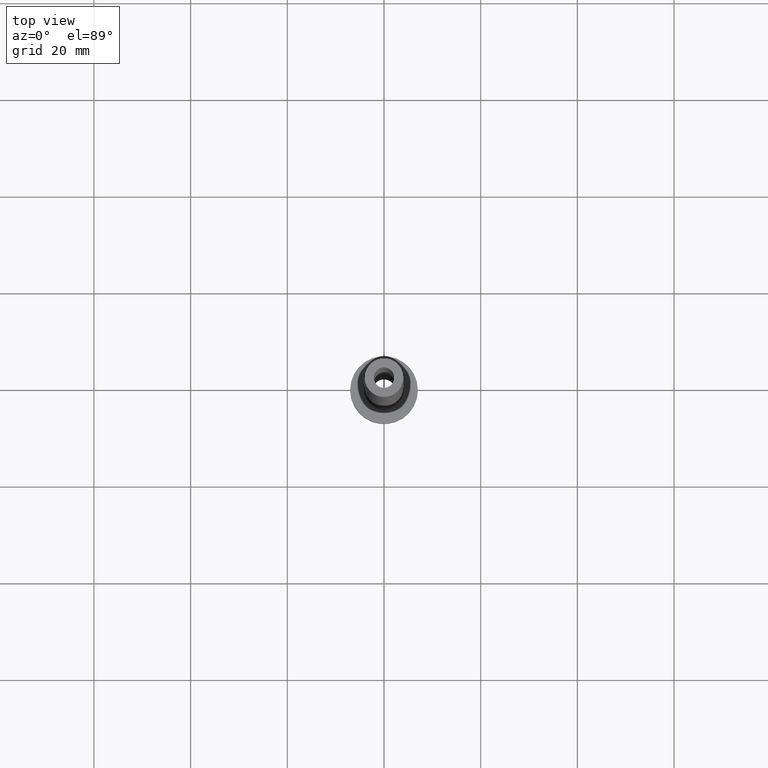
[diagram: clean part render]
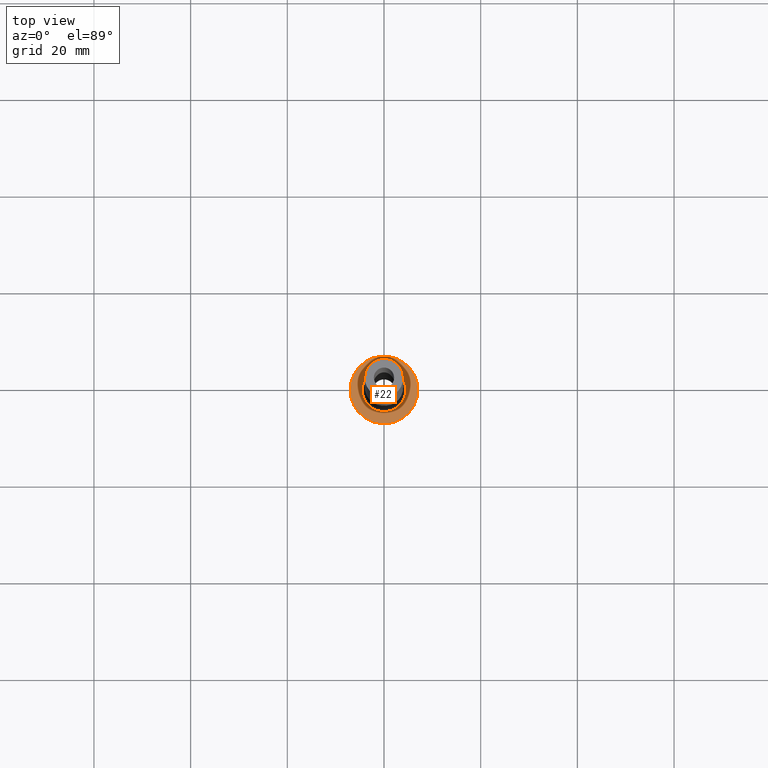
[diagram: same view with one face highlighted and labeled with its STEP entity id]
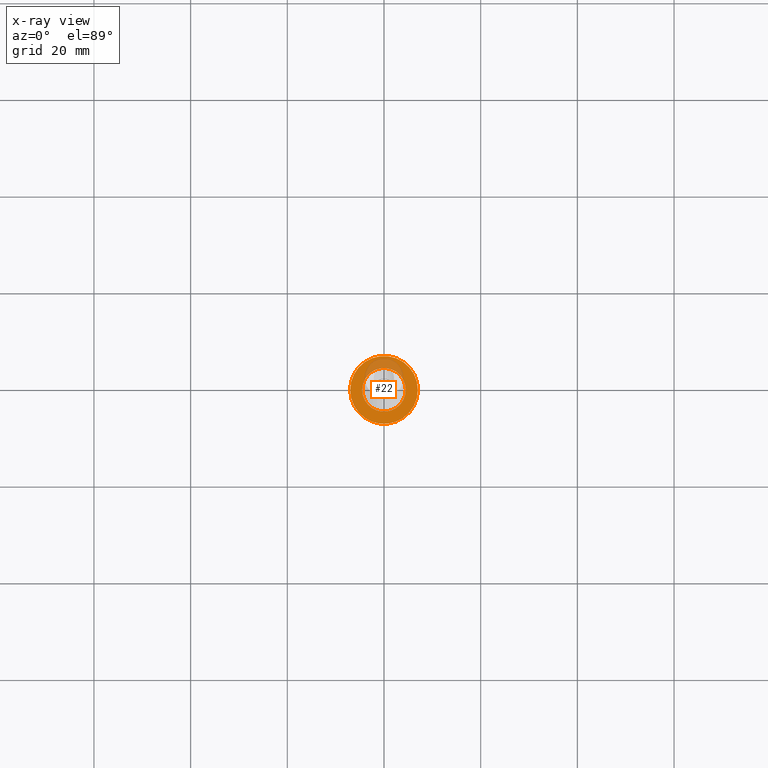
[diagram: x-ray of the same camera — body ghosted, the highlighted face saturated]
A machine part, top view. The second image highlights one B-rep face of the part: STEP entity #22.
The next image is the same camera in x-ray: the body ghosted, the highlighted face saturated — about 17% of this face is hidden behind the body in this view.
In plain terms, the highlighted planar face has unit normal (0, 0, 1).
Its self-contained STEP definition (entity closure, byte-faithful):
#4 = EDGE_CURVE ( 'NONE', #44, #455, #233, .T. ) ;
#11 = CIRCLE ( 'NONE', #32, 4.500000000000000888 ) ;
#21 = DIRECTION ( 'NONE',  ( 1.000000000000000000, 0.000000000000000000, 0.000000000000000000 ) ) ;
#22 = ADVANCED_FACE ( 'NONE', ( #371, #439 ), #369, .T. ) ;
#32 = AXIS2_PLACEMENT_3D ( 'NONE', #125, #255, #86 ) ;
#44 = VERTEX_POINT ( 'NONE', #297 ) ;
#56 = AXIS2_PLACEMENT_3D ( 'NONE', #180, #408, #152 ) ;
#60 = EDGE_CURVE ( 'NONE', #455, #44, #11, .T. ) ;
#72 = DIRECTION ( 'NONE',  ( 1.000000000000000000, 0.000000000000000000, 0.000000000000000000 ) ) ;
#86 = DIRECTION ( 'NONE',  ( 1.000000000000000000, 0.000000000000000000, 0.000000000000000000 ) ) ;
#108 = ORIENTED_EDGE ( 'NONE', *, *, #60, .T. ) ;
#113 = ORIENTED_EDGE ( 'NONE', *, *, #4, .T. ) ;
#114 = VERTEX_POINT ( 'NONE', #425 ) ;
#125 = CARTESIAN_POINT ( 'NONE',  ( 0.000000000000000000, 0.000000000000000000, 5.000000000000000000 ) ) ;
#128 = EDGE_CURVE ( 'NONE', #114, #351, #192, .T. ) ;
#142 = EDGE_CURVE ( 'NONE', #351, #114, #251, .T. ) ;
#152 = DIRECTION ( 'NONE',  ( 1.000000000000000000, 0.000000000000000000, 0.000000000000000000 ) ) ;
#162 = AXIS2_PLACEMENT_3D ( 'NONE', #272, #347, #21 ) ;
#180 = CARTESIAN_POINT ( 'NONE',  ( 0.000000000000000000, 0.000000000000000000, 5.000000000000000000 ) ) ;
#192 = CIRCLE ( 'NONE', #162, 7.000000000000000000 ) ;
#228 = AXIS2_PLACEMENT_3D ( 'NONE', #434, #363, #331 ) ;
#231 = EDGE_LOOP ( 'NONE', ( #113, #108 ) ) ;
#233 = CIRCLE ( 'NONE', #56, 4.500000000000000888 ) ;
#243 = DIRECTION ( 'NONE',  ( 0.000000000000000000, 0.000000000000000000, 1.000000000000000000 ) ) ;
#251 = CIRCLE ( 'NONE', #335, 7.000000000000000000 ) ;
#255 = DIRECTION ( 'NONE',  ( -0.000000000000000000, -0.000000000000000000, -1.000000000000000000 ) ) ;
#272 = CARTESIAN_POINT ( 'NONE',  ( 0.000000000000000000, 0.000000000000000000, 5.000000000000000000 ) ) ;
#280 = ORIENTED_EDGE ( 'NONE', *, *, #128, .T. ) ;
#286 = EDGE_LOOP ( 'NONE', ( #377, #280 ) ) ;
#297 = CARTESIAN_POINT ( 'NONE',  ( 4.500000000000000888, 0.000000000000000000, 5.000000000000002665 ) ) ;
#331 = DIRECTION ( 'NONE',  ( 1.000000000000000000, 0.000000000000000000, -0.000000000000000000 ) ) ;
#335 = AXIS2_PLACEMENT_3D ( 'NONE', #383, #243, #72 ) ;
#347 = DIRECTION ( 'NONE',  ( 0.000000000000000000, 0.000000000000000000, 1.000000000000000000 ) ) ;
#351 = VERTEX_POINT ( 'NONE', #397 ) ;
#363 = DIRECTION ( 'NONE',  ( 0.000000000000000000, 0.000000000000000000, 1.000000000000000000 ) ) ;
#369 = PLANE ( 'NONE',  #228 ) ;
#371 = FACE_BOUND ( 'NONE', #231, .T. ) ;
#377 = ORIENTED_EDGE ( 'NONE', *, *, #142, .T. ) ;
#383 = CARTESIAN_POINT ( 'NONE',  ( 0.000000000000000000, 0.000000000000000000, 5.000000000000000000 ) ) ;
#397 = CARTESIAN_POINT ( 'NONE',  ( -7.000000000000000000, 0.000000000000000000, 5.000000000000000000 ) ) ;
#408 = DIRECTION ( 'NONE',  ( -0.000000000000000000, -0.000000000000000000, -1.000000000000000000 ) ) ;
#419 = CARTESIAN_POINT ( 'NONE',  ( -4.500000000000000888, 5.510910596163088569E-16, 5.000000000000002665 ) ) ;
#425 = CARTESIAN_POINT ( 'NONE',  ( 7.000000000000000000, 8.572527594031473190E-16, 5.000000000000000000 ) ) ;
#434 = CARTESIAN_POINT ( 'NONE',  ( 0.000000000000000000, 0.000000000000000000, 5.000000000000000000 ) ) ;
#439 = FACE_OUTER_BOUND ( 'NONE', #286, .T. ) ;
#455 = VERTEX_POINT ( 'NONE', #419 ) ;